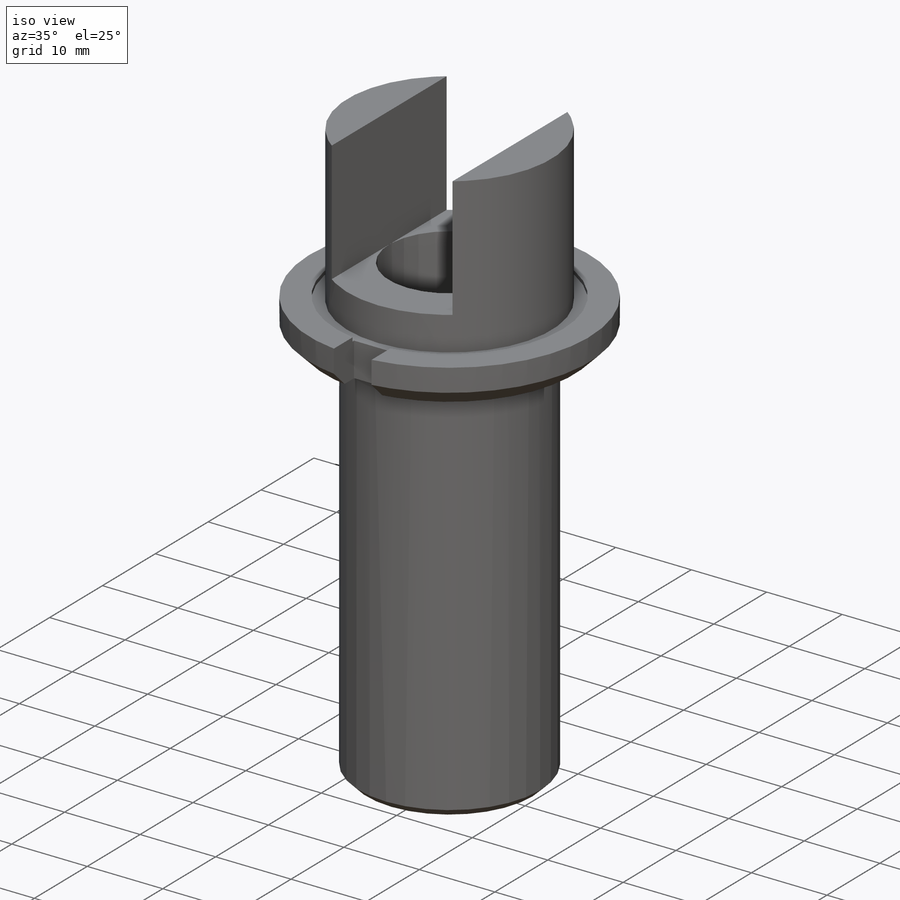
[diagram: iso view]
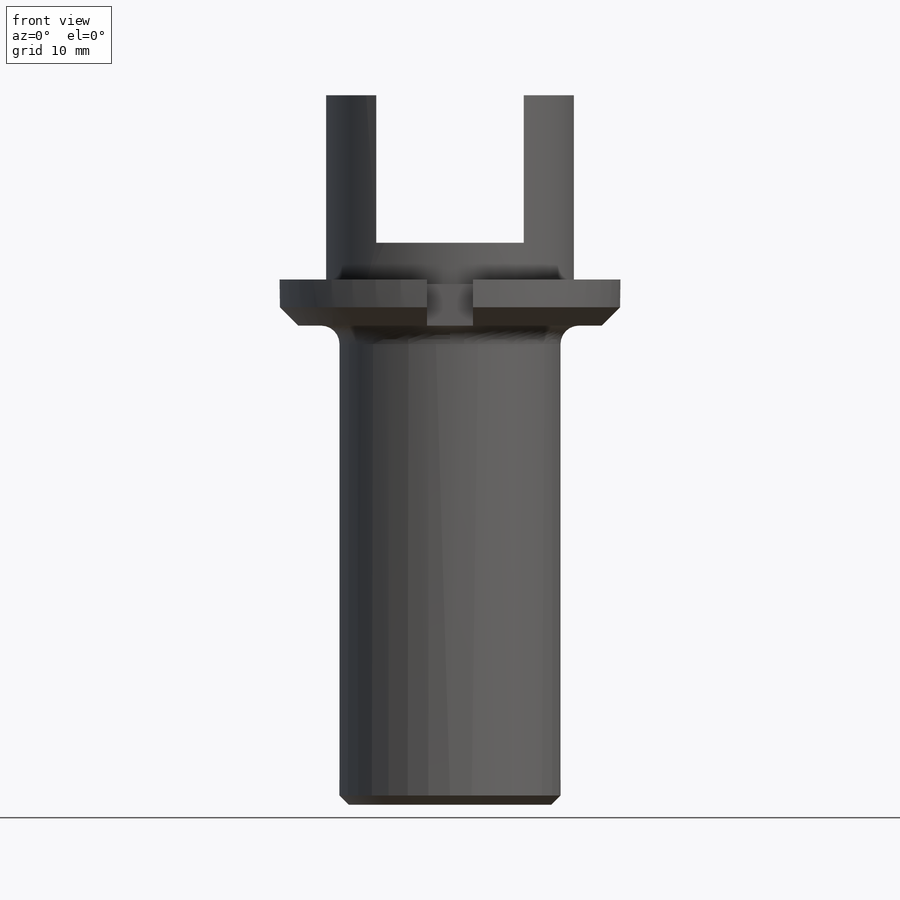
[diagram: front view]
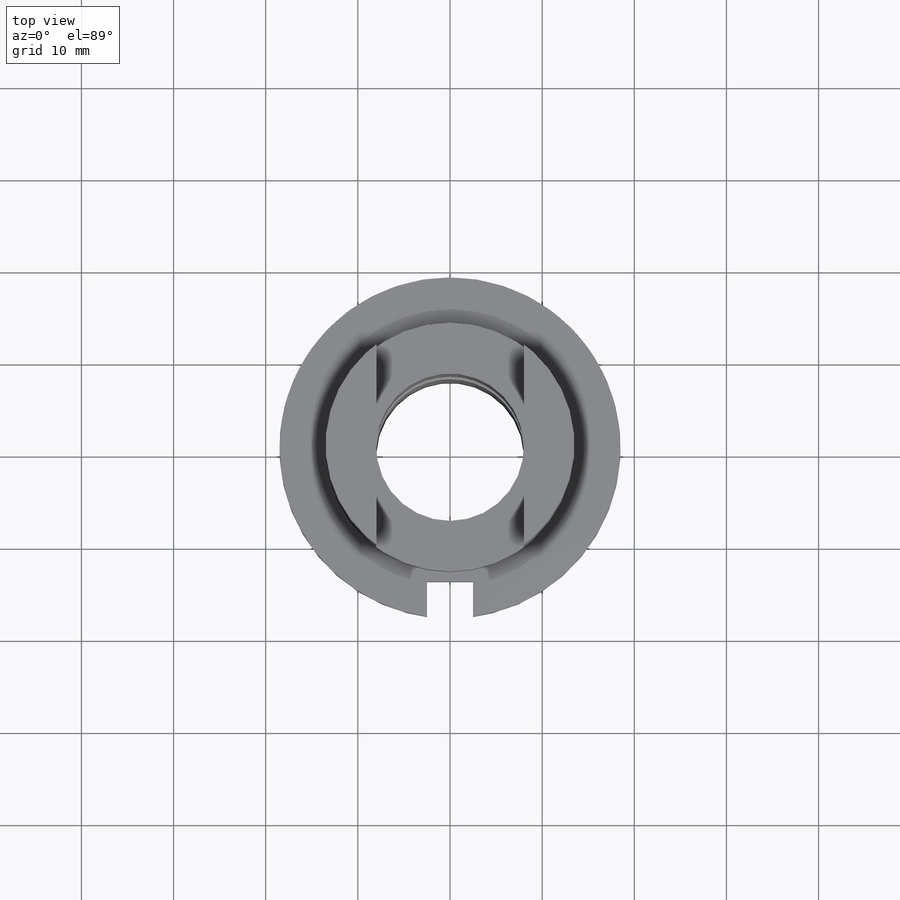
[diagram: top view]
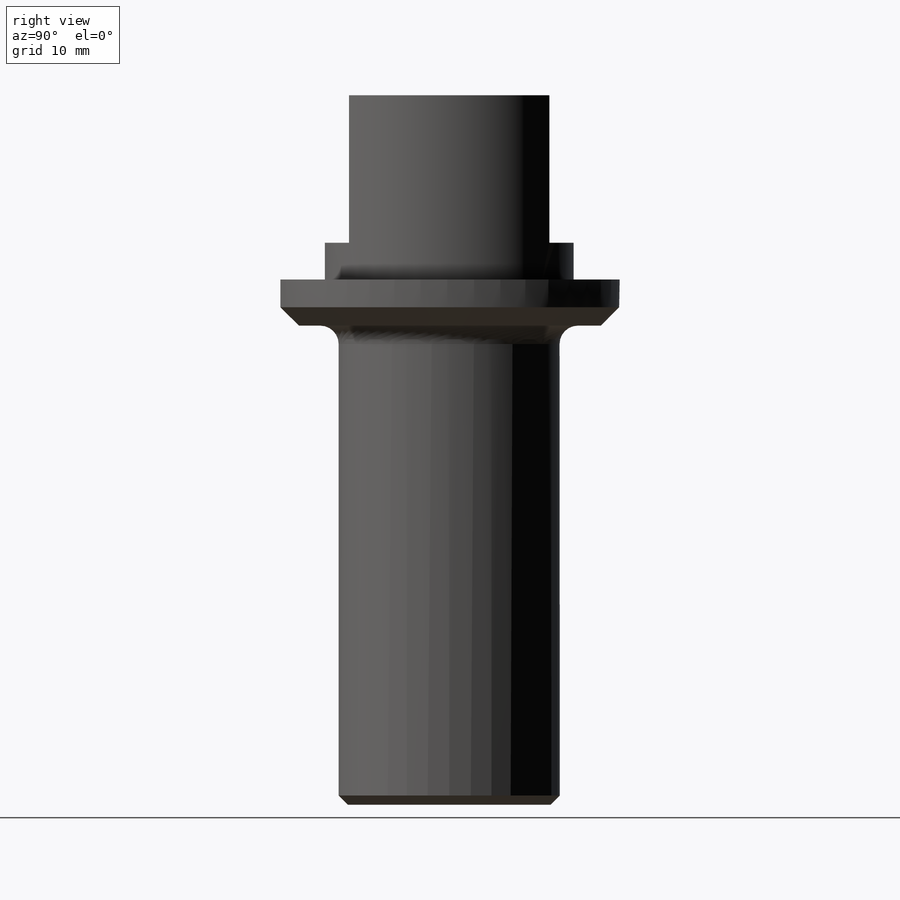
[diagram: right view]
SOLIDWORKS PART (.sldprt)
format: sldprt  version: not decoded by parser v0  size: 226,816 bytes
history: native  units: mm
features: sketch x4, plane x3, cut_extrude x3, fillet x2, chamfer x2, material x1, revolve x1 (+13 scaffold rows collapsed)
feature tree (29):
  scaffold x13  (default folders/planes/origin — collapsed)
  material  "AISI 1045 Aço, trefilado"
  plane  "Plano frontal"
  plane  "Plano superior"
  plane  "Plano direito"
  sketch  "Esboço1"  dims[D1=16.0mm D2=17.0mm D3=77.0mm D4=25.0mm D5=16.0mm D6=52.0mm D7=5.0mm D8=24.0mm D9=27.0mm D10=37.0mm]
  revolve  "Revolução1"  Angle=360deg
  sketch  "Esboço2"  dims[D1=16.0mm D2=16.0mm]
  cut_extrude  "Corte-extrusão1"  Depth=50mm
  sketch  "Esboço3"  dims[D1=30.0mm]
  cut_extrude  "Corte-extrusão2"  Depth=0.5mm
  fillet  "Filete1"  Radius=2mm
  chamfer  "Chanfro1"  Distance=2mm Angle=45deg
  sketch  "Esboço4"  dims[D1=5.0mm D2=4.0mm]
  cut_extrude  "Corte-extrusão3"  [1 undecoded]
  fillet  "Filete2"  Radius=0.5mm
  chamfer  "Chanfro2"  Distance=1mm Angle=45deg
decode coverage: 11 of 12 modeling features carry decoded parameters
note: 1 parameter value undecoded
note: suppression state not decoded; provenance and decode notes live in map.json
